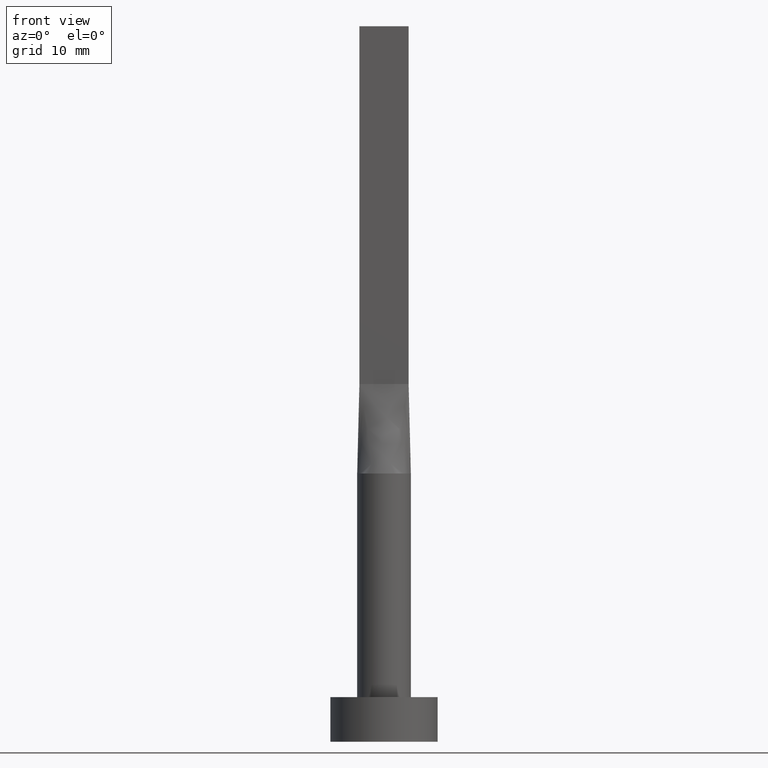
[diagram: clean part render]
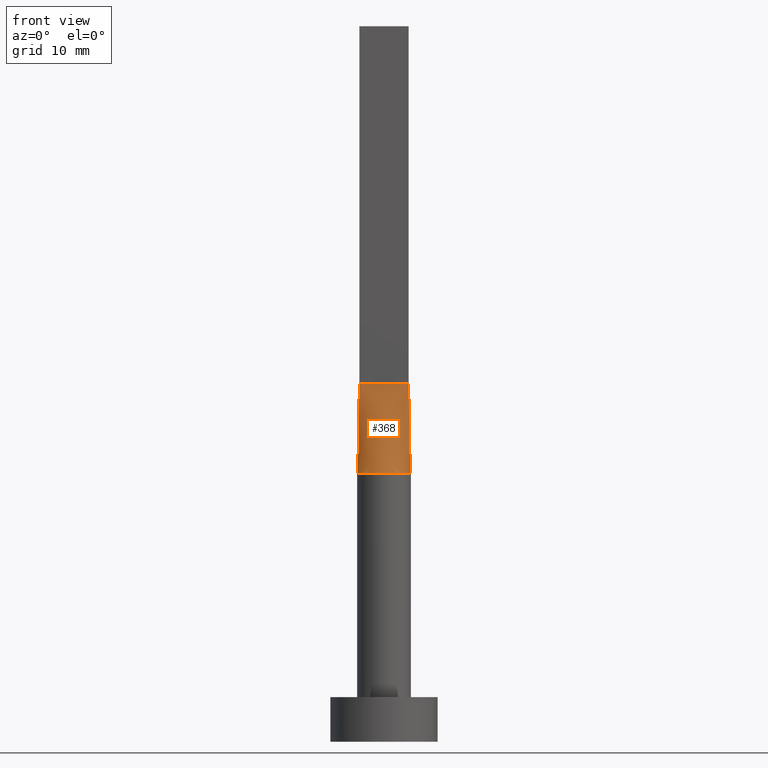
[diagram: same view with one face highlighted and labeled with its STEP entity id]
A machine part, front view. The second image highlights one B-rep face of the part: STEP entity #368.
In plain terms, the highlighted face is a freeform B-spline surface patch.
Its self-contained STEP definition (entity closure, byte-faithful):
#23 = AXIS2_PLACEMENT_3D ( 'NONE', #389, #252, #581 ) ;
#26 = CARTESIAN_POINT ( 'NONE',  ( -1.145833333333331705, -0.5999999999999994227, 39.99999999999999289 ) ) ;
#31 = CARTESIAN_POINT ( 'NONE',  ( -2.931047284229977734, -0.6395012256501755310, 30.00000000000000355 ) ) ;
#32 = ORIENTED_EDGE ( 'NONE', *, *, #421, .F. ) ;
#35 = CARTESIAN_POINT ( 'NONE',  ( -0.4583333333333322046, -0.5999999999999994227, 39.99999999999999289 ) ) ;
#61 = CARTESIAN_POINT ( 'NONE',  ( 2.328745122427008152, -1.922758842442226390, 29.99999999999999645 ) ) ;
#74 = CIRCLE ( 'NONE', #23, 3.000000000000000444 ) ;
#76 = ORIENTED_EDGE ( 'NONE', *, *, #445, .T. ) ;
#80 = CARTESIAN_POINT ( 'NONE',  ( -2.840523642114988867, -0.6197506128250873658, 35.00000000000000000 ) ) ;
#94 = VERTEX_POINT ( 'NONE', #404 ) ;
#111 = CARTESIAN_POINT ( 'NONE',  ( -0.2291666666666657692, -0.5999999999999995337, 39.99999999999999289 ) ) ;
#115 = CARTESIAN_POINT ( 'NONE',  ( -1.517787371616672321, -2.616501225271827380, 30.00000000000000355 ) ) ;
#121 = CARTESIAN_POINT ( 'NONE',  ( -2.792624347712116428, -1.135030881087314647, 30.00000000000000355 ) ) ;
#124 = CARTESIAN_POINT ( 'NONE',  ( 1.604166666666666963, -0.5999999999999996447, 39.99999999999999289 ) ) ;
#127 = VERTEX_POINT ( 'NONE', #161 ) ;
#136 = LINE ( 'NONE', #347, #306 ) ;
#145 = CARTESIAN_POINT ( 'NONE',  ( 2.520833333333333037, -0.5999999999999996447, 39.99999999999999289 ) ) ;
#155 = CARTESIAN_POINT ( 'NONE',  ( 1.833333333333333481, -0.5999999999999996447, 39.99999999999999289 ) ) ;
#161 = CARTESIAN_POINT ( 'NONE',  ( -2.750000000000000000, -0.5999999999999994227, 40.00000000000000000 ) ) ;
#166 = CARTESIAN_POINT ( 'NONE',  ( 2.840523642114988867, -0.6197506128250874768, 35.00000000000000000 ) ) ;
#172 = CARTESIAN_POINT ( 'NONE',  ( 0.9166666666666676289, -0.5999999999999996447, 39.99999999999999289 ) ) ;
#189 = EDGE_CURVE ( 'NONE', #520, #94, #332, .T. ) ;
#198 = CARTESIAN_POINT ( 'NONE',  ( -2.878980386154874616, -0.8781411751610622707, 29.99999999999999645 ) ) ;
#201 = CARTESIAN_POINT ( 'NONE',  ( -0.9166666666666650753, -0.5999999999999994227, 39.99999999999999289 ) ) ;
#203 = CARTESIAN_POINT ( 'NONE',  ( -0.4026715616377306572, -3.000000000000000000, 30.00000000000000711 ) ) ;
#208 = CARTESIAN_POINT ( 'NONE',  ( 2.518011668798964209, -1.657305971825550506, 30.00000000000000711 ) ) ;
#210 = CARTESIAN_POINT ( 'NONE',  ( 2.878980386154875060, -0.8781411751610634919, 30.00000000000000711 ) ) ;
#211 = VECTOR ( 'NONE', #572, 1000.000000000000114 ) ;
#223 = ORIENTED_EDGE ( 'NONE', *, *, #522, .T. ) ;
#230 = CARTESIAN_POINT ( 'NONE',  ( 1.829136458871248205, -2.402980488111650992, 30.00000000000000355 ) ) ;
#248 = CARTESIAN_POINT ( 'NONE',  ( -1.829136458871248427, -2.402980488111649660, 29.99999999999998579 ) ) ;
#252 = DIRECTION ( 'NONE',  ( 0.000000000000000000, 0.000000000000000000, 1.000000000000000000 ) ) ;
#254 = LINE ( 'NONE', #80, #211 ) ;
#264 = EDGE_LOOP ( 'NONE', ( #76, #310, #32, #223 ) ) ;
#291 = CARTESIAN_POINT ( 'NONE',  ( -2.520833333333333037, -0.5999999999999994227, 39.99999999999999289 ) ) ;
#300 = CARTESIAN_POINT ( 'NONE',  ( 2.291666666666666519, -0.5999999999999996447, 39.99999999999999289 ) ) ;
#306 = VECTOR ( 'NONE', #314, 1000.000000000000000 ) ;
#310 = ORIENTED_EDGE ( 'NONE', *, *, #189, .T. ) ;
#314 = DIRECTION ( 'NONE',  ( 1.000000000000000000, -5.913830031739115543E-17, 0.000000000000000000 ) ) ;
#332 = LINE ( 'NONE', #166, #463 ) ;
#333 = CARTESIAN_POINT ( 'NONE',  ( -1.833333333333331705, -0.5999999999999994227, 39.99999999999999289 ) ) ;
#335 = CARTESIAN_POINT ( 'NONE',  ( 0.4026715616377293805, -3.000000000000001332, 30.00000000000001066 ) ) ;
#336 = CARTESIAN_POINT ( 'NONE',  ( 2.792624347712116872, -1.135030881087315757, 30.00000000000001421 ) ) ;
#344 = DIRECTION ( 'NONE',  ( -0.01810162078030962476, 0.003949444533885597061, 0.9998283518749604415 ) ) ;
#347 = CARTESIAN_POINT ( 'NONE',  ( -2.750000000000000000, -0.5999999999999994227, 40.00000000000000000 ) ) ;
#368 = ADVANCED_FACE ( 'NONE', ( #563 ), #461, .T. ) ;
#371 = CARTESIAN_POINT ( 'NONE',  ( 1.517787371616671876, -2.616501225271829156, 30.00000000000002132 ) ) ;
#375 = CARTESIAN_POINT ( 'NONE',  ( -2.518011668798964653, -1.657305971825550062, 30.00000000000000711 ) ) ;
#389 = CARTESIAN_POINT ( 'NONE',  ( 0.000000000000000000, 0.000000000000000000, 30.00000000000000355 ) ) ;
#404 = CARTESIAN_POINT ( 'NONE',  ( 2.750000000000000000, -0.5999999999999997558, 40.00000000000000000 ) ) ;
#417 = CARTESIAN_POINT ( 'NONE',  ( -2.750000000000000000, -0.5999999999999994227, 40.00000000000000000 ) ) ;
#418 = CARTESIAN_POINT ( 'NONE',  ( 2.750000000000000000, -0.5999999999999997558, 40.00000000000000000 ) ) ;
#421 = EDGE_CURVE ( 'NONE', #127, #94, #136, .T. ) ;
#422 = CARTESIAN_POINT ( 'NONE',  ( 2.931332910560268790, -0.6395638358681950963, 30.00000000000000355 ) ) ;
#445 = EDGE_CURVE ( 'NONE', #488, #520, #74, .T. ) ;
#448 = CARTESIAN_POINT ( 'NONE',  ( -2.931315536094174057, -0.6395601373676296220, 30.00000000000000355 ) ) ;
#456 = CARTESIAN_POINT ( 'NONE',  ( 1.145833333333333925, -0.5999999999999996447, 39.99999999999999289 ) ) ;
#460 = CARTESIAN_POINT ( 'NONE',  ( -2.291666666666665630, -0.5999999999999994227, 39.99999999999999289 ) ) ;
#461 = B_SPLINE_SURFACE_WITH_KNOTS ( 'NONE', 3, 1, ( 
 ( #31, #417 ),
 ( #198, #291 ),
 ( #121, #460 ),
 ( #375, #333 ),
 ( #508, #516 ),
 ( #248, #26 ),
 ( #115, #201 ),
 ( #567, #35 ),
 ( #203, #111 ),
 ( #335, #517 ),
 ( #569, #471 ),
 ( #371, #172 ),
 ( #230, #456 ),
 ( #61, #124 ),
 ( #208, #155 ),
 ( #336, #300 ),
 ( #210, #145 ),
 ( #509, #418 ) ),
 .UNSPECIFIED., .F., .F., .F.,
 ( 4, 2, 2, 2, 2, 2, 2, 2, 4 ),
 ( 2, 2 ),
 ( 0.000000000000000000, 0.1250000000000000833, 0.2500000000000001665, 0.3750000000000001110, 0.5000000000000001110, 0.6250000000000001110, 0.7500000000000000000, 0.8750000000000000000, 1.000000000000000000 ),
 ( 0.000000000000000000, 1.000000000000000000 ),
 .UNSPECIFIED. ) ;
#463 = VECTOR ( 'NONE', #344, 1000.000000000000114 ) ;
#471 = CARTESIAN_POINT ( 'NONE',  ( 0.4583333333333343695, -0.5999999999999995337, 39.99999999999999289 ) ) ;
#488 = VERTEX_POINT ( 'NONE', #448 ) ;
#508 = CARTESIAN_POINT ( 'NONE',  ( -2.328745122427009928, -1.922758842442225058, 29.99999999999998579 ) ) ;
#509 = CARTESIAN_POINT ( 'NONE',  ( 2.931047284229977734, -0.6395012256501753090, 30.00000000000000355 ) ) ;
#516 = CARTESIAN_POINT ( 'NONE',  ( -1.604166666666664742, -0.5999999999999994227, 39.99999999999999289 ) ) ;
#517 = CARTESIAN_POINT ( 'NONE',  ( 0.2291666666666674901, -0.5999999999999995337, 39.99999999999999289 ) ) ;
#520 = VERTEX_POINT ( 'NONE', #422 ) ;
#522 = EDGE_CURVE ( 'NONE', #127, #488, #254, .T. ) ;
#563 = FACE_OUTER_BOUND ( 'NONE', #264, .T. ) ;
#567 = CARTESIAN_POINT ( 'NONE',  ( -0.8041209001220698260, -2.916015559847872307, 30.00000000000001066 ) ) ;
#569 = CARTESIAN_POINT ( 'NONE',  ( 0.8041209001220684938, -2.916015559847872751, 30.00000000000001066 ) ) ;
#572 = DIRECTION ( 'NONE',  ( -0.01810162078030962476, -0.003949444533885650838, -0.9998283518749604415 ) ) ;
#581 = DIRECTION ( 'NONE',  ( 1.000000000000000000, 0.000000000000000000, 0.000000000000000000 ) ) ;